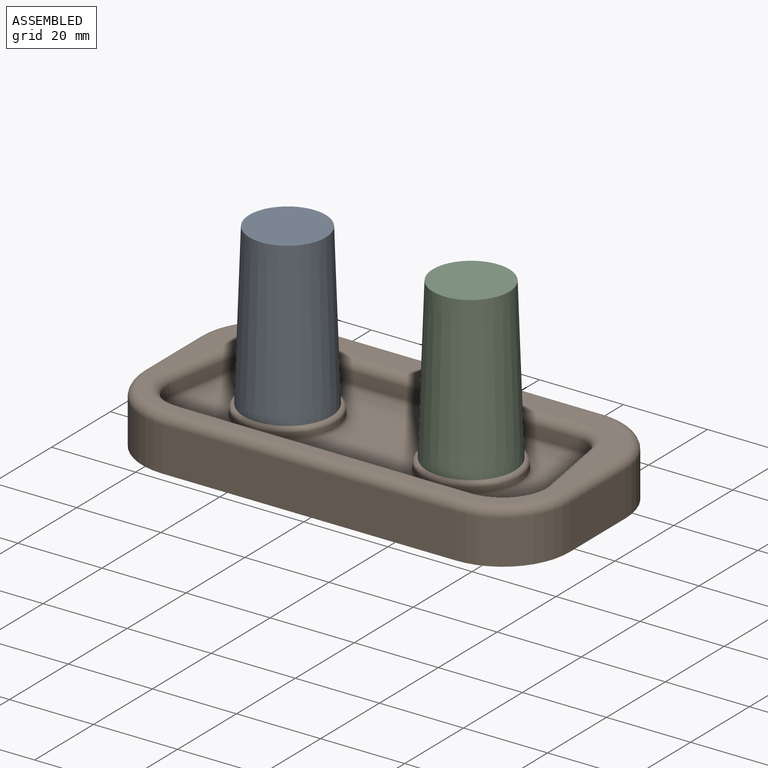
[diagram: assembled view]
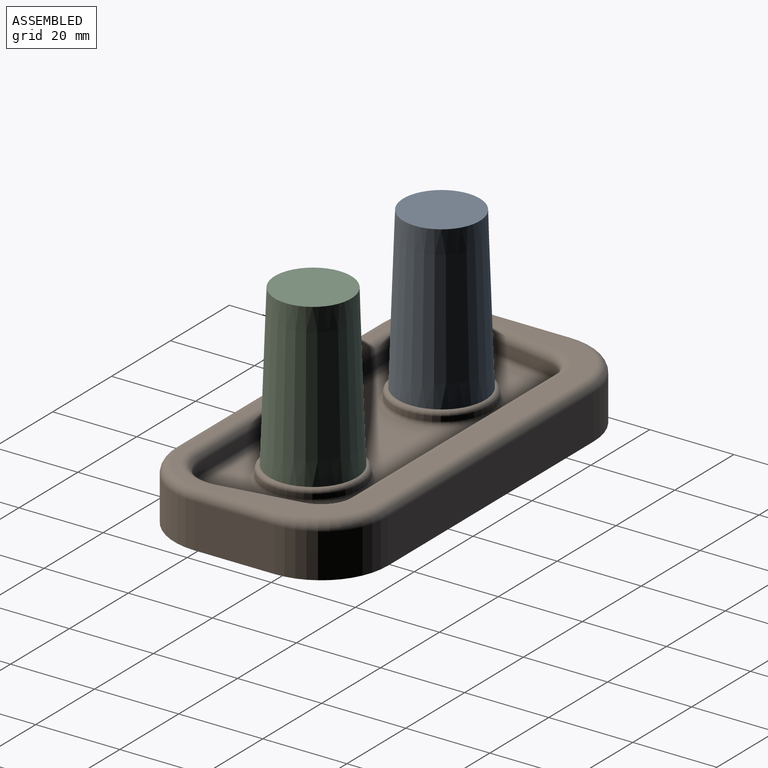
[diagram: assembled view, second angle]
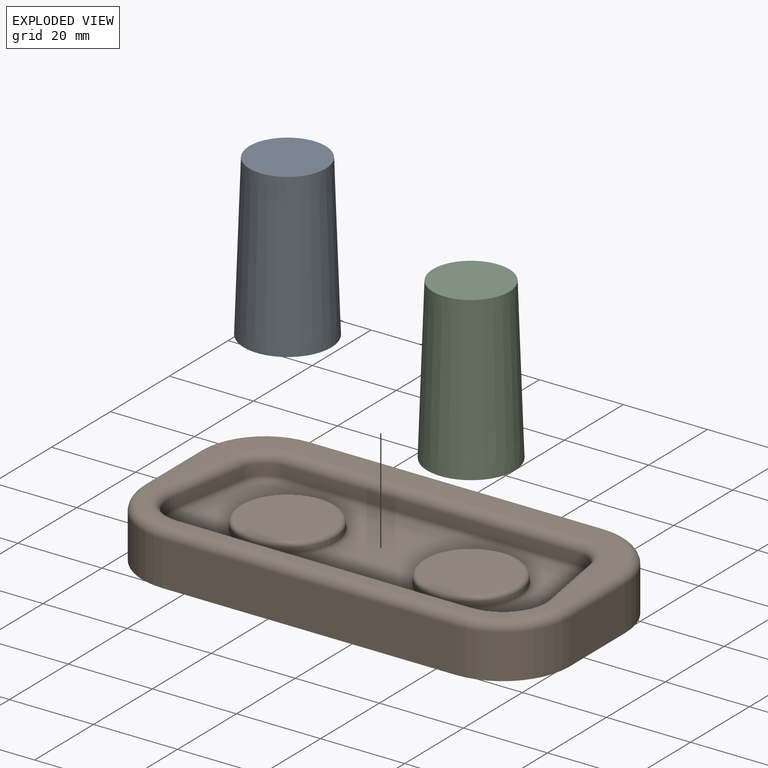
[diagram: exploded view]
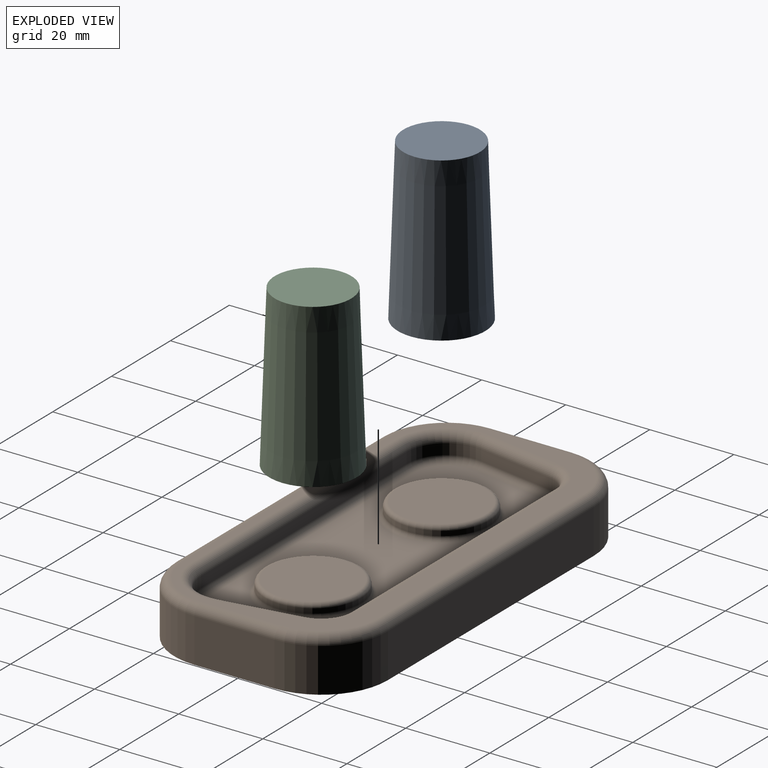
[diagram: exploded view, second angle]
ASSEMBLY  parts=3 mates=2
PART A: 3 faces, bbox 20.8x20.8x38.1 mm
  f0: cone r=10.41mm half-angle=2deg, axis (0,0,-1), area 2335.2mm2, adj f1,f2
  f1: plane 18.17x18.17mm, normal (0,0,1), area 259.2mm2, adj f0
  f2: plane 20.83x20.83mm, normal (0,0,-1), area 340.7mm2, adj f0
PART B: 51 faces, bbox 104.2x53.4x12.7 mm
  f0: plane 19.05x10.49mm, normal (-1,0,0), area 199.8mm2, adj f1,f15,f17,f34
  f1: cylinder r=15.88mm len=15.88mm, axis (0,0,-1), area 261.6mm2, adj f0,f2,f17,f36
  f2: plane 69.85x10.49mm, normal (0,-1,0), area 732.7mm2, adj f1,f3,f17,f38
  f3: cylinder r=15.88mm len=15.88mm, axis (0,0,-1), area 261.6mm2, adj f2,f4,f17,f37
  f4: plane 19.05x10.49mm, normal (1,0,0), area 199.8mm2, adj f3,f5,f17,f35
  f5: cylinder r=15.88mm len=15.88mm, axis (0,0,-1), area 261.6mm2, adj f4,f6,f17,f33
  f6: plane 69.85x10.49mm, normal (0,1,0), area 732.7mm2, adj f5,f15,f17,f31
  f7: plane 69.85x2.62mm, normal (0,1,0), area 182.7mm2, adj f8,f14,f28,f48
  f8: cylinder r=9.53mm len=11.11mm, axis (0,0,-1), area 43.3mm2, adj f7,f9,f26,f46
  f9: plane 18.52x3.13mm, normal (0.99,-0.17,0), area 49.1mm2, adj f8,f10,f24,f44
  f10: cylinder r=6.35mm len=6.26mm, axis (0,0,-1), area 23.3mm2, adj f9,f11,f23,f43
  f11: plane 69.85x2.62mm, normal (0,-1,0), area 182.7mm2, adj f10,f12,f25,f45
  f12: cylinder r=6.35mm len=6.26mm, axis (0,0,-1), area 23.3mm2, adj f11,f13,f27,f47
  f13: plane 18.52x3.13mm, normal (-0.99,-0.17,0), area 49.1mm2, adj f12,f14,f29,f49
  f14: cylinder r=9.53mm len=11.11mm, axis (0,0,-1), area 43.3mm2, adj f7,f13,f30,f50
  f15: cylinder r=15.88mm len=15.88mm, axis (0,0,-1), area 261.6mm2, adj f0,f6,f17,f32
  f16: plane 97.18x46.38mm, normal (0,0,1), area 875.4mm2, adj f23,f24,f25,f26,f27,f28,f29,f30
  f17: plane 101.6x50.8mm, normal (0,0,-1), area 4944.9mm2, adj f0,f1,f2,f3,f4,f5,f6,f15
  f18: plane 85.85x31.88mm, normal (0,0,1), area 1638.2mm2, adj f39,f42,f43,f44,f45,f46,f47,f48
  f19: plane 20.83x20.83mm, normal (0,0,1), area 340.7mm2, adj f41
  f20: cylinder r=11.43mm len=22.86mm, axis (0,0,-1), area 82.1mm2, adj f41,f42
  f21: plane 20.83x20.83mm, normal (0,0,1), area 340.7mm2, adj f40
  f22: cylinder r=11.43mm len=22.86mm, axis (0,0,-1), area 82.1mm2, adj f39,f40
  f23: torus R=8.56mm, axis (0,0,1), area 34.8mm2, adj f10,f16,f24,f25
  f24: cylinder r=2.21mm len=18.89mm, axis (-0.17,-0.99,0), area 65.2mm2, adj f9,f16,f23,f26
  f25: cylinder r=2.21mm len=69.85mm, axis (-1,0,0), area 242.5mm2, adj f11,f16,f23,f27
  f26: torus R=11.73mm, axis (0,0,1), area 62.3mm2, adj f8,f16,f24,f28
  f27: torus R=8.56mm, axis (0,0,1), area 34.8mm2, adj f12,f16,f25,f29
  f28: cylinder r=2.21mm len=69.85mm, axis (1,0,0), area 242.5mm2, adj f7,f16,f26,f30
  f29: cylinder r=2.21mm len=18.89mm, axis (-0.17,0.99,0), area 65.2mm2, adj f13,f16,f27,f30
  f30: torus R=11.73mm, axis (0,0,1), area 62.3mm2, adj f14,f16,f28,f29
  f31: cylinder r=2.21mm len=69.85mm, axis (1,0,0), area 242.5mm2, adj f6,f16,f32,f33
  f32: torus R=13.67mm, axis (0,0,1), area 82.2mm2, adj f15,f16,f31,f34
  f33: torus R=13.67mm, axis (0,0,1), area 82.2mm2, adj f5,f16,f31,f35
  f34: cylinder r=2.21mm len=19.05mm, axis (0,1,0), area 66.1mm2, adj f0,f16,f32,f36
  f35: cylinder r=2.21mm len=19.05mm, axis (0,-1,0), area 66.1mm2, adj f4,f16,f33,f37
  f36: torus R=13.67mm, axis (0,0,1), area 82.2mm2, adj f1,f16,f34,f38
  f37: torus R=13.67mm, axis (0,0,1), area 82.2mm2, adj f3,f16,f35,f38
  f38: cylinder r=2.21mm len=69.85mm, axis (-1,0,0), area 242.5mm2, adj f2,f16,f36,f37
  f39: torus R=12.45mm, axis (0,0,1), area 118.3mm2, adj f18,f22
  f40: torus R=10.41mm, axis (0,0,1), area 110.9mm2, adj f21,f22
  f41: torus R=10.41mm, axis (0,0,1), area 110.9mm2, adj f19,f20
  f42: torus R=12.45mm, axis (0,0,1), area 118.3mm2, adj f18,f20
  f43: torus R=4.83mm, axis (0,0,1), area 19.5mm2, adj f10,f18,f44,f45
  f44: cylinder r=1.52mm len=18.78mm, axis (0.17,0.99,0), area 45mm2, adj f9,f18,f43,f46
  f45: cylinder r=1.52mm len=69.85mm, axis (1,0,0), area 167.2mm2, adj f11,f18,f43,f47
  f46: torus R=8mm, axis (0,0,1), area 37.3mm2, adj f8,f18,f44,f48
  f47: torus R=4.83mm, axis (0,0,1), area 19.5mm2, adj f12,f18,f45,f49
  f48: cylinder r=1.52mm len=69.85mm, axis (-1,0,0), area 167.2mm2, adj f7,f18,f46,f50
  f49: cylinder r=1.52mm len=18.78mm, axis (0.17,-0.99,0), area 45mm2, adj f13,f18,f47,f50
  f50: torus R=8mm, axis (0,0,1), area 37.3mm2, adj f14,f18,f48,f49
PART C: 3 faces, bbox 20.8x20.8x38.1 mm
  f0: cone r=10.41mm half-angle=2deg, axis (0,0,-1), area 2335.2mm2, adj f1,f2
  f1: plane 18.17x18.17mm, normal (0,0,1), area 259.2mm2, adj f0
  f2: plane 20.83x20.83mm, normal (0,0,-1), area 340.7mm2, adj f0
PLACE A t=(43.94,0,0)mm
PLACE B t=(43.94,0,0)mm
PLACE C t=(43.94,0,0)mm
MATE fastened A.f0 <-> B.f20  axis (0,0,-1) through (30.32,-20.25,9.52)mm
MATE fastened B.f22 <-> C.f0  axis (0,0,1) through (73.98,-20.25,9.52)mm
